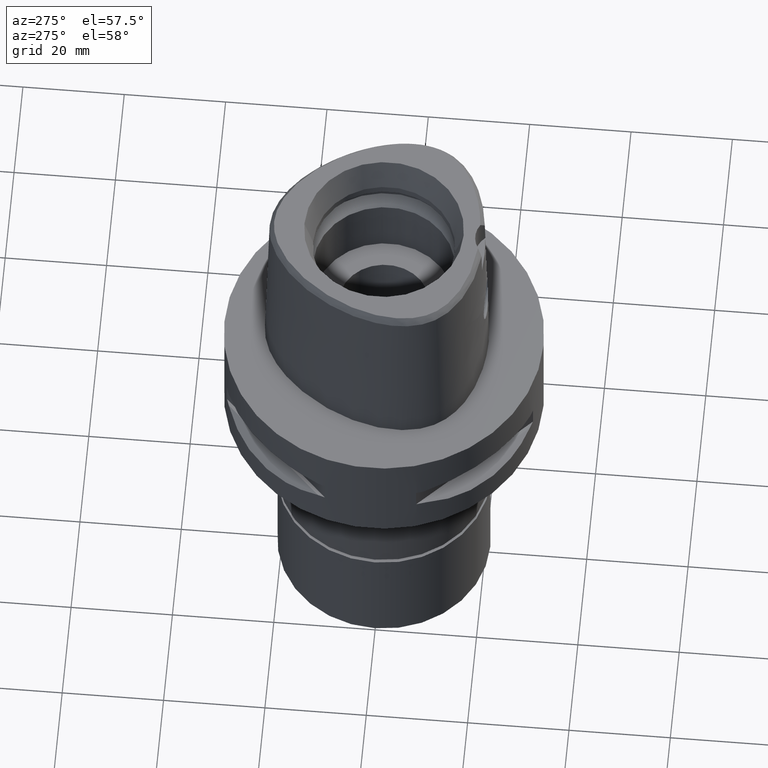
[diagram: clean part render]
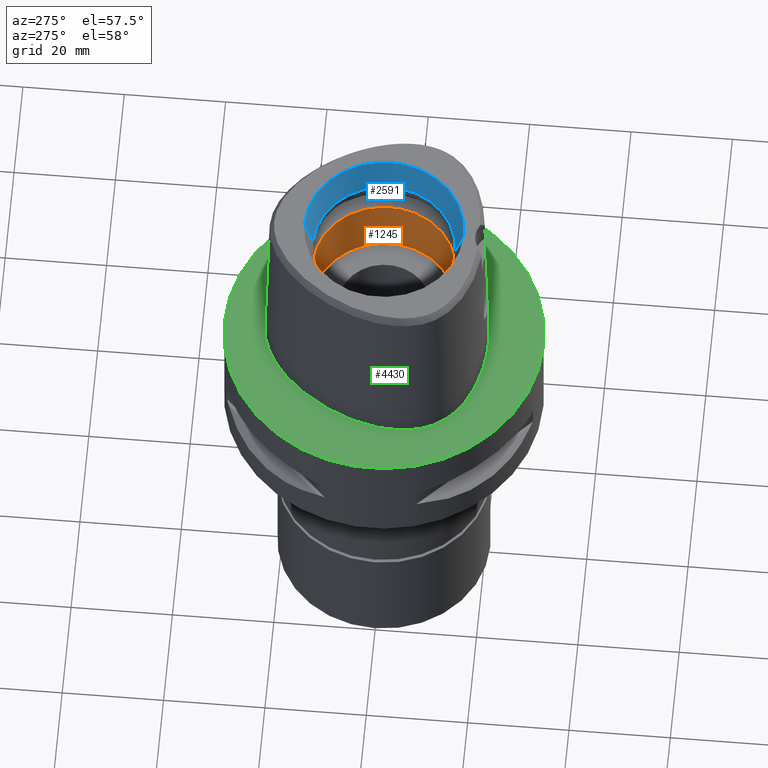
[diagram: same view with three faces highlighted in distinct colors, each labeled with its STEP entity id]
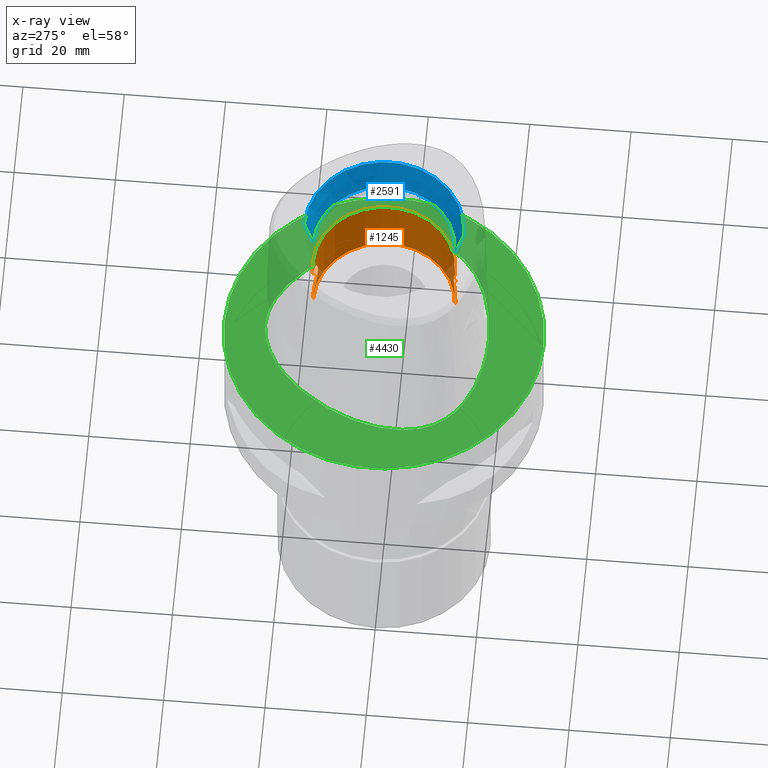
[diagram: x-ray of the same camera — body ghosted, the three highlighted faces saturated]
A machine part, auxiliary view with three faces highlighted in distinct colors.
The next image is the same camera in x-ray (body ghosted, the three faces saturated) — at least one of them is partly hidden behind the body in this view.
Their STEP definitions:

[orange] entity #1245 — the highlighted cylindrical surface (partial cylindrical patch) has radius 14 mm, axis along (0, 0, -1).
#11 = CARTESIAN_POINT ( 'NONE',  ( 0.0000000000000000000, 14.00000000000000000, 11.44999999999999929 ) ) ;
#20 = CARTESIAN_POINT ( 'NONE',  ( 2.389606631102847878, 13.79517256463715391, 18.78130546339814799 ) ) ;
#50 = VERTEX_POINT ( 'NONE', #3705 ) ;
#68 = CARTESIAN_POINT ( 'NONE',  ( 0.0000000000000000000, 14.00000000000000000, 19.55000000000000071 ) ) ;
#69 = CARTESIAN_POINT ( 'NONE',  ( 3.563299403348177741, -13.54007857837342499, 17.42809499448291177 ) ) ;
#74 = CARTESIAN_POINT ( 'NONE',  ( 2.607305802028555330, 13.75484511583591285, 12.39982832404619728 ) ) ;
#98 = CARTESIAN_POINT ( 'NONE',  ( 1.521239397964627260, 13.91705241658559977, 11.74655632043191922 ) ) ;
#117 = CARTESIAN_POINT ( 'NONE',  ( 3.870701254310896733, -13.45442875234448543, 14.30642332066276268 ) ) ;
#121 = CARTESIAN_POINT ( 'NONE',  ( 3.105382909351436016, 13.65366961293688775, 12.87581589399783510 ) ) ;
#143 = CARTESIAN_POINT ( 'NONE',  ( 2.790989827443583149, -13.71898972574921949, 18.43506864631904918 ) ) ;
#149 = CARTESIAN_POINT ( 'NONE',  ( 0.8843927856092005380, 13.97225085478111062, 11.54559706478814540 ) ) ;
#175 = CARTESIAN_POINT ( 'NONE',  ( 3.729798084138008285, 13.49406838395428210, 13.92165903206249666 ) ) ;
#237 = CIRCLE ( 'NONE', #3624, 14.00000000000000000 ) ;
#260 = CARTESIAN_POINT ( 'NONE',  ( 1.549827070804125517, -13.91385044570379392, 11.75826844476449118 ) ) ;
#289 = CARTESIAN_POINT ( 'NONE',  ( 3.012096658504149538, 13.67229405904337902, 18.20768334110830367 ) ) ;
#313 = CARTESIAN_POINT ( 'NONE',  ( 4.018418258436433632, 13.41126728698726822, 14.97902929758655333 ) ) ;
#337 = CARTESIAN_POINT ( 'NONE',  ( 3.758114823044370389, 13.48620210536324571, 17.00966254426021607 ) ) ;
#390 = CARTESIAN_POINT ( 'NONE',  ( 3.763406683060288582, 13.48472236777299749, 16.99642519946478814 ) ) ;
#438 = EDGE_CURVE ( 'NONE', #2021, #2982, #1308, .T. ) ;
#444 = CARTESIAN_POINT ( 'NONE',  ( 1.516106989697826535, -13.91761182004659858, 19.25552098761409070 ) ) ;
#466 = CARTESIAN_POINT ( 'NONE',  ( 3.504366652964252982, -13.55582170348692195, 17.53459800301160598 ) ) ;
#471 = CARTESIAN_POINT ( 'NONE',  ( 0.2468907790982800277, 14.00000000000000355, 11.44999999999999929 ) ) ;
#512 = CARTESIAN_POINT ( 'NONE',  ( 1.468464289878311124, -13.92272201800551557, 19.27446985509351407 ) ) ;
#518 = CARTESIAN_POINT ( 'NONE',  ( 3.660570587372122819, 13.51338664005266033, 13.76645812307594241 ) ) ;
#522 = EDGE_CURVE ( 'NONE', #2982, #1512, #658, .T. ) ;
#540 = CARTESIAN_POINT ( 'NONE',  ( 3.733075151569629213, -13.49315628679262424, 17.07055961913841102 ) ) ;
#550 = B_SPLINE_CURVE_WITH_KNOTS ( 'NONE', 3,
 ( #1205, #3163, #1977, #2797, #4220, #3089, #2707, #3112, #512, #4576, #3066, #444, #4198, #1654, #3475, #1252, #4552, #4176, #2032, #4596, #814, #143, #913, #1230, #2751, #466, #69, #3523, #2332, #1951, #4651, #4278, #862, #540, #2434, #2063, #2729, #2357, #3552, #1559, #3452, #2382, #3865, #837, #2003, #3498, #117, #1629, #3137, #3911, #4625, #2774, #888, #2404, #1030, #4026, #635, #4746, #4005, #589, #1372, #1704, #2917, #653, #2159, #3958, #3642, #938, #2849, #3255, #2557, #3597, #1302, #2461, #2090, #3211, #260, #2822, #3936, #4401 ),
 .UNSPECIFIED., .F., .F.,
 ( 4, 2, 2, 1, 1, 1, 1, 2, 2, 2, 2, 2, 2, 2, 2, 2, 2, 1, 1, 1, 2, 2, 2, 2, 2, 2, 2, 1, 1, 1, 1, 2, 2, 2, 2, 2, 2, 2, 2, 2, 2, 1, 1, 1, 2, 2, 4 ),
 ( 0.0000000000000000000, 0.06250000000002167710, 0.09375000000003257117, 0.1093750000000379002, 0.1171875000000404121, 0.1210937500000418138, 0.1230468750000423828, 0.1240234375000428407, 0.1250000000000432709, 0.1875000000000742462, 0.2187500000000899281, 0.2343750000000977829, 0.2421875000001016964, 0.2500000000001056377, 0.3125000000001360023, 0.3437500000001512124, 0.3593750000001583733, 0.3671875000001615375, 0.3710937500001636469, 0.3730468750001640910, 0.3740234375001638134, 0.3750000000001635359, 0.4375000000001423306, 0.4687500000001313949, 0.5000000000001203482, 0.5625000000000988098, 0.5937500000000880407, 0.6093750000000828226, 0.6171875000000803801, 0.6210937500000793809, 0.6230468750000788258, 0.6240234375000787148, 0.6250000000000786038, 0.6875000000000638378, 0.7187500000000561773, 0.7343750000000524025, 0.7421875000000506262, 0.7500000000000487388, 0.8125000000000338618, 0.8437500000000264233, 0.8593750000000226485, 0.8671875000000207612, 0.8710937500000197620, 0.8730468750000193179, 0.8740234375000190958, 0.8750000000000188738, 1.000000000000000000 ),
 .UNSPECIFIED. ) ;
#589 = CARTESIAN_POINT ( 'NONE',  ( 3.119649368171985238, -13.64852288964262073, 12.91601910559208832 ) ) ;
#635 = CARTESIAN_POINT ( 'NONE',  ( 3.388650874876416808, -13.58516680732913606, 13.27806070664919602 ) ) ;
#653 = CARTESIAN_POINT ( 'NONE',  ( 2.926720600961588925, -13.69070609537475036, 12.70020944749870040 ) ) ;
#658 = LINE ( 'NONE', #68, #1274 ) ;
#680 = CARTESIAN_POINT ( 'NONE',  ( 3.595207310900245812, 13.53244030162044709, 17.38331386070849760 ) ) ;
#737 = CARTESIAN_POINT ( 'NONE',  ( 4.049603778810921817, 13.40164524003842317, 15.36403679216037155 ) ) ;
#738 = LINE ( 'NONE', #1533, #2505 ) ;
#814 = CARTESIAN_POINT ( 'NONE',  ( 2.729728960428633222, -13.73122662573988428, 18.49212833583319693 ) ) ;
#834 = CARTESIAN_POINT ( 'NONE',  ( 0.0000000000000000000, 0.0000000000000000000, 11.00000000000000000 ) ) ;
#837 = CARTESIAN_POINT ( 'NONE',  ( 4.028788943890502239, -13.40828728567670325, 15.01097686220206207 ) ) ;
#861 = DIRECTION ( 'NONE',  ( 0.0000000000000000000, 0.0000000000000000000, 1.000000000000000000 ) ) ;
#862 = CARTESIAN_POINT ( 'NONE',  ( 3.729851510281004590, -13.49405347936513699, 17.07821471190008822 ) ) ;
#869 = CARTESIAN_POINT ( 'NONE',  ( 2.790917114516480169, 13.71900452313149721, 12.56486224800528184 ) ) ;
#888 = CARTESIAN_POINT ( 'NONE',  ( 3.760177708747098446, -13.48562548706266107, 13.99547953274038647 ) ) ;
#904 = EDGE_CURVE ( 'NONE', #50, #2851, #4349, .T. ) ;
#913 = CARTESIAN_POINT ( 'NONE',  ( 2.820543667296012469, -13.71297172628372962, 18.40672008197702425 ) ) ;
#914 = ORIENTED_EDGE ( 'NONE', *, *, #2968, .T. ) ;
#938 = CARTESIAN_POINT ( 'NONE',  ( 1.932644226224374373, -13.86536327347557496, 11.93901371261715738 ) ) ;
#1030 = CARTESIAN_POINT ( 'NONE',  ( 3.689309815405022341, -13.50543078305894973, 13.81942252216789235 ) ) ;
#1032 = CARTESIAN_POINT ( 'NONE',  ( 4.043404075888144433, 13.40361607803458455, 15.23546408259069374 ) ) ;
#1057 = CARTESIAN_POINT ( 'NONE',  ( 2.042740775498927519, 13.84941152458456770, 18.99976877421899957 ) ) ;
#1081 = CARTESIAN_POINT ( 'NONE',  ( 1.030342286390515172, 13.97143324013731558, 19.45624379582876173 ) ) ;
#1097 = AXIS2_PLACEMENT_3D ( 'NONE', #834, #2354, #1227 ) ;
#1104 = CARTESIAN_POINT ( 'NONE',  ( 1.564791766211536261, 13.91217584136656349, 19.23550372230628369 ) ) ;
#1205 = CARTESIAN_POINT ( 'NONE',  ( 0.0000000000000000000, -14.00000000000000000, 19.55000000000000071 ) ) ;
#1227 = DIRECTION ( 'NONE',  ( 0.0000000000000000000, 1.000000000000000000, 0.0000000000000000000 ) ) ;
#1230 = CARTESIAN_POINT ( 'NONE',  ( 3.105451877107200165, -13.65365393604282396, 18.12410257819103876 ) ) ;
#1233 = CARTESIAN_POINT ( 'NONE',  ( 2.729658579981687261, 13.73124066250220388, 12.50780749282102633 ) ) ;
#1245 = ADVANCED_FACE ( 'NONE', ( #4257 ), #3167, .F. ) ;
#1252 = CARTESIAN_POINT ( 'NONE',  ( 2.247093781679271540, -13.81783888559857587, 18.87207529808490492 ) ) ;
#1270 = DIRECTION ( 'NONE',  ( 0.0000000000000000000, 0.0000000000000000000, 1.000000000000000000 ) ) ;
#1271 = DIRECTION ( 'NONE',  ( 0.0000000000000000000, -1.000000000000000000, 0.0000000000000000000 ) ) ;
#1274 = VECTOR ( 'NONE', #861, 1000.000000000000000 ) ;
#1282 = CARTESIAN_POINT ( 'NONE',  ( 0.5006542133318911958, 13.99306271369527721, 11.47263633977860842 ) ) ;
#1302 = CARTESIAN_POINT ( 'NONE',  ( 1.584072628561228768, -13.90999090387762926, 11.77260603989251919 ) ) ;
#1308 = B_SPLINE_CURVE_WITH_KNOTS ( 'NONE', 3,
 ( #2780, #471, #1282, #149, #4228, #4179, #2008, #3890, #1983, #1562, #3072, #1660, #98, #1610, #3481, #2713, #4629, #3117, #74, #3095, #1233, #869, #3503, #121, #1632, #3166, #3141, #4256, #518, #2036, #3193, #3555, #175, #1686, #4679, #2070, #2279, #4052, #3692, #313, #1032, #737, #4797, #1902, #3332, #4429, #3767, #2991, #3740, #2945, #4819, #390, #2210, #337, #2234, #680, #1829, #3040, #1427, #4842, #2184, #289, #3669, #1453, #1480, #20, #1057, #2969, #4502, #4478, #1801, #2256, #4451, #1104, #3405, #1532, #1507, #1081, #4867, #3304 ),
 .UNSPECIFIED., .F., .F.,
 ( 4, 2, 2, 1, 1, 1, 1, 2, 2, 2, 2, 2, 2, 2, 2, 2, 2, 1, 1, 1, 2, 2, 2, 2, 2, 2, 2, 1, 1, 1, 1, 2, 2, 2, 2, 2, 2, 2, 2, 2, 2, 1, 1, 1, 2, 2, 4 ),
 ( 0.0000000000000000000, 0.06249999999997432609, 0.09374999999996150302, 0.1093749999999549943, 0.1171874999999517192, 0.1210937499999500955, 0.1230468749999492489, 0.1240234374999488742, 0.1249999999999484995, 0.1874999999999309719, 0.2187499999999222011, 0.2343749999999178157, 0.2421874999999155953, 0.2499999999999133471, 0.3124999999998950284, 0.3437499999998858691, 0.3593749999998815947, 0.3671874999998796518, 0.3710937499998787081, 0.3730468749998782640, 0.3740234374998780975, 0.3749999999998779310, 0.4374999999998592237, 0.4687499999998496758, 0.4999999999998401279, 0.5624999999998214761, 0.5937499999998124833, 0.6093749999998080424, 0.6171874999998058220, 0.6210937499998051559, 0.6230468749998043787, 0.6240234374998039346, 0.6249999999998034905, 0.6874999999998385736, 0.7187499999998562261, 0.7343749999998649969, 0.7421874999998693268, 0.7499999999998736566, 0.8124999999999066302, 0.8437499999999228395, 0.8593749999999309441, 0.8671874999999351630, 0.8710937499999373834, 0.8730468749999384936, 0.8740234374999388267, 0.8749999999999391598, 1.000000000000000000 ),
 .UNSPECIFIED. ) ;
#1366 = VERTEX_POINT ( 'NONE', #3914 ) ;
#1372 = CARTESIAN_POINT ( 'NONE',  ( 3.039621742609562638, -13.66626319303366088, 12.82327307657179105 ) ) ;
#1427 = CARTESIAN_POINT ( 'NONE',  ( 3.169484150999139604, 13.63719129944562702, 18.02244310124115501 ) ) ;
#1453 = CARTESIAN_POINT ( 'NONE',  ( 2.926757940684296511, 13.69069812806404229, 18.29975157032056998 ) ) ;
#1480 = CARTESIAN_POINT ( 'NONE',  ( 2.643855925210973901, 13.75050990108833204, 18.58899067244902881 ) ) ;
#1507 = CARTESIAN_POINT ( 'NONE',  ( 1.549800888837871815, 13.91385336478909451, 19.24174239961439170 ) ) ;
#1512 = VERTEX_POINT ( 'NONE', #3403 ) ;
#1532 = CARTESIAN_POINT ( 'NONE',  ( 1.551182167801624878, 13.91369912587216895, 19.24116860586652322 ) ) ;
#1533 = CARTESIAN_POINT ( 'NONE',  ( 0.0000000000000000000, -14.00000000000000000, 11.00000000000000000 ) ) ;
#1559 = CARTESIAN_POINT ( 'NONE',  ( 4.018446815311756737, -13.41125882817017079, 16.02075274226879742 ) ) ;
#1562 = CARTESIAN_POINT ( 'NONE',  ( 1.496209062229229003, 13.91976391567387594, 11.73649281778287268 ) ) ;
#1571 = CARTESIAN_POINT ( 'NONE',  ( 0.0000000000000000000, -14.00000000000000000, 11.44999999999999929 ) ) ;
#1610 = CARTESIAN_POINT ( 'NONE',  ( 1.699498323898332552, 13.89756202083898629, 11.81895490396662929 ) ) ;
#1629 = CARTESIAN_POINT ( 'NONE',  ( 3.840235474302556185, -13.46311102268622584, 14.21038986028327145 ) ) ;
#1632 = CARTESIAN_POINT ( 'NONE',  ( 3.292837237123419136, 13.60943893687718109, 13.12714965898324593 ) ) ;
#1644 = DIRECTION ( 'NONE',  ( 0.0000000000000000000, 0.0000000000000000000, 1.000000000000000000 ) ) ;
#1654 = CARTESIAN_POINT ( 'NONE',  ( 1.699547710347619756, -13.89755589228634847, 19.18102190414527897 ) ) ;
#1660 = CARTESIAN_POINT ( 'NONE',  ( 1.516049776552715667, 13.91761803145802467, 11.74445591610737694 ) ) ;
#1686 = CARTESIAN_POINT ( 'NONE',  ( 3.733021802275663603, 13.49317117652112330, 13.92931358081910354 ) ) ;
#1704 = CARTESIAN_POINT ( 'NONE',  ( 3.012054064919663432, -13.67230337968485543, 12.79226932695917718 ) ) ;
#1797 = DIRECTION ( 'NONE',  ( 0.0000000000000000000, 0.0000000000000000000, -1.000000000000000000 ) ) ;
#1801 = CARTESIAN_POINT ( 'NONE',  ( 1.658066957319048074, 13.90126643029906006, 19.19513103677467569 ) ) ;
#1826 = LINE ( 'NONE', #4117, #4682 ) ;
#1829 = CARTESIAN_POINT ( 'NONE',  ( 3.388711787095205707, 13.58515185966998118, 17.72184700206244301 ) ) ;
#1892 = ORIENTED_EDGE ( 'NONE', *, *, #3866, .F. ) ;
#1902 = CARTESIAN_POINT ( 'NONE',  ( 4.028817602476269855, 13.40827845965225684, 15.98879441403359003 ) ) ;
#1931 = EDGE_CURVE ( 'NONE', #1366, #2854, #4715, .T. ) ;
#1951 = CARTESIAN_POINT ( 'NONE',  ( 3.691546097942945526, -13.50475023722316159, 17.16601277855687258 ) ) ;
#1977 = CARTESIAN_POINT ( 'NONE',  ( 0.5006727397249739475, -13.99306219063980983, 19.52736202599870197 ) ) ;
#1983 = CARTESIAN_POINT ( 'NONE',  ( 1.468408839111399189, 13.92272784414878117, 11.72550857795075174 ) ) ;
#1999 = EDGE_LOOP ( 'NONE', ( #3414, #4226, #2252, #1892, #2757, #914, #3826, #2746 ) ) ;
#2003 = CARTESIAN_POINT ( 'NONE',  ( 3.956956940387752031, -13.42953289332189470, 14.62710953273264458 ) ) ;
#2008 = CARTESIAN_POINT ( 'NONE',  ( 1.301099768754825803, 13.93951553503071672, 11.66363957099792437 ) ) ;
#2021 = VERTEX_POINT ( 'NONE', #11 ) ;
#2032 = CARTESIAN_POINT ( 'NONE',  ( 2.607371625281170946, -13.75483250725455164, 18.60011643686653926 ) ) ;
#2036 = CARTESIAN_POINT ( 'NONE',  ( 3.691491732757653299, 13.50476529552040184, 13.83386678112831625 ) ) ;
#2063 = CARTESIAN_POINT ( 'NONE',  ( 3.735642322025394702, -13.49244213756905175, 17.06444735270616775 ) ) ;
#2070 = CARTESIAN_POINT ( 'NONE',  ( 3.735589064899134559, 13.49245700668902614, 13.93542548506620804 ) ) ;
#2090 = CARTESIAN_POINT ( 'NONE',  ( 1.556641822669901920, -13.91308938930849415, 11.76109977519696770 ) ) ;
#2119 = VERTEX_POINT ( 'NONE', #1571 ) ;
#2159 = CARTESIAN_POINT ( 'NONE',  ( 2.643834899388235460, -13.75051376142170589, 12.41099428314559816 ) ) ;
#2184 = CARTESIAN_POINT ( 'NONE',  ( 3.039665921569060014, 13.66625344735882841, 18.17667680129265761 ) ) ;
#2207 = DIRECTION ( 'NONE',  ( 0.0000000000000000000, -1.000000000000000000, 0.0000000000000000000 ) ) ;
#2210 = CARTESIAN_POINT ( 'NONE',  ( 3.760242303705966016, 13.48560737426130096, 17.00435901869071742 ) ) ;
#2234 = CARTESIAN_POINT ( 'NONE',  ( 3.689376291974156619, 13.50541240432178469, 17.18043312221960051 ) ) ;
#2252 = ORIENTED_EDGE ( 'NONE', *, *, #3680, .T. ) ;
#2256 = CARTESIAN_POINT ( 'NONE',  ( 1.623263029080947328, 13.90545543373178283, 19.21060336716553962 ) ) ;
#2257 = DIRECTION ( 'NONE',  ( 0.0000000000000000000, 0.0000000000000000000, 1.000000000000000000 ) ) ;
#2263 = CARTESIAN_POINT ( 'NONE',  ( 0.0000000000000000000, -14.00000000000000000, 24.19999999999999929 ) ) ;
#2279 = CARTESIAN_POINT ( 'NONE',  ( 3.844975096048708796, 13.46206385660456917, 14.19738878897553036 ) ) ;
#2332 = CARTESIAN_POINT ( 'NONE',  ( 3.660625729100416059, -13.51337147989354470, 17.23342549815627933 ) ) ;
#2354 = DIRECTION ( 'NONE',  ( 0.0000000000000000000, 0.0000000000000000000, -1.000000000000000000 ) ) ;
#2357 = CARTESIAN_POINT ( 'NONE',  ( 3.923096833782871773, -13.43954938019137835, 16.54019903190127749 ) ) ;
#2382 = CARTESIAN_POINT ( 'NONE',  ( 4.049612425225107337, -13.40164268354111776, 15.63569932303633614 ) ) ;
#2404 = CARTESIAN_POINT ( 'NONE',  ( 3.758050083745089420, -13.48622025070034702, 13.99017630582556748 ) ) ;
#2434 = CARTESIAN_POINT ( 'NONE',  ( 3.735210467204654439, -13.49256230698017411, 17.06547448724646188 ) ) ;
#2461 = CARTESIAN_POINT ( 'NONE',  ( 1.564817707003120173, -13.91217292110034087, 11.76450714444006884 ) ) ;
#2505 = VECTOR ( 'NONE', #2257, 1000.000000000000000 ) ;
#2557 = CARTESIAN_POINT ( 'NONE',  ( 1.658091469199600265, -13.90126353414017402, 11.80487996578112053 ) ) ;
#2572 = CARTESIAN_POINT ( 'NONE',  ( 0.0000000000000000000, 14.00000000000000000, 19.55000000000000071 ) ) ;
#2707 = CARTESIAN_POINT ( 'NONE',  ( 1.301148960222698214, -13.93951097464081990, 19.33634383392205436 ) ) ;
#2713 = CARTESIAN_POINT ( 'NONE',  ( 2.247039395003117335, 13.81784804716769521, 12.12788860422348414 ) ) ;
#2729 = CARTESIAN_POINT ( 'NONE',  ( 3.845027792340793837, -13.46204894698201393, 16.80246024978700703 ) ) ;
#2746 = ORIENTED_EDGE ( 'NONE', *, *, #438, .F. ) ;
#2751 = CARTESIAN_POINT ( 'NONE',  ( 3.292901640596177071, -13.60942328115688227, 17.87276157133955223 ) ) ;
#2757 = ORIENTED_EDGE ( 'NONE', *, *, #904, .T. ) ;
#2774 = CARTESIAN_POINT ( 'NONE',  ( 3.763342261370362873, -13.48474044375522318, 14.00341279520855053 ) ) ;
#2780 = CARTESIAN_POINT ( 'NONE',  ( 0.0000000000000000000, 14.00000000000000000, 11.44999999999999929 ) ) ;
#2797 = CARTESIAN_POINT ( 'NONE',  ( 0.8844260360689062406, -13.97224876255922688, 19.45439566898829398 ) ) ;
#2822 = CARTESIAN_POINT ( 'NONE',  ( 1.030360006107707838, -13.97143227215047645, 11.54375931209893302 ) ) ;
#2849 = CARTESIAN_POINT ( 'NONE',  ( 1.778688278332507533, -13.88610465195248267, 11.86103348881247221 ) ) ;
#2851 = VERTEX_POINT ( 'NONE', #2263 ) ;
#2854 = VERTEX_POINT ( 'NONE', #3651 ) ;
#2917 = CARTESIAN_POINT ( 'NONE',  ( 2.955071736272522287, -13.68463725736224923, 12.73019384771993323 ) ) ;
#2945 = CARTESIAN_POINT ( 'NONE',  ( 3.779015732589135812, 13.48035176796838108, 16.95672534374582341 ) ) ;
#2968 = EDGE_CURVE ( 'NONE', #2851, #1512, #237, .T. ) ;
#2969 = CARTESIAN_POINT ( 'NONE',  ( 1.932627882378292083, 13.86536533867107046, 19.06099527212709432 ) ) ;
#2982 = VERTEX_POINT ( 'NONE', #2572 ) ;
#2991 = CARTESIAN_POINT ( 'NONE',  ( 3.840294817787715420, 13.46309408569773147, 16.78943374163519664 ) ) ;
#3040 = CARTESIAN_POINT ( 'NONE',  ( 3.308942326201188777, 13.60475066437008884, 17.84025567227377351 ) ) ;
#3066 = CARTESIAN_POINT ( 'NONE',  ( 1.508171609194621787, -13.91847227101216866, 19.25871476569316698 ) ) ;
#3072 = CARTESIAN_POINT ( 'NONE',  ( 1.508114688977166384, 13.91847841755245696, 11.74126239597152477 ) ) ;
#3089 = CARTESIAN_POINT ( 'NONE',  ( 1.205105045107055073, -13.94796642979855328, 19.36712856783361758 ) ) ;
#3095 = CARTESIAN_POINT ( 'NONE',  ( 2.699030704183354779, 13.73723475712931119, 12.48016800975699958 ) ) ;
#3112 = CARTESIAN_POINT ( 'NONE',  ( 1.412784365357735661, -13.92850804260864095, 19.29586208320954199 ) ) ;
#3117 = CARTESIAN_POINT ( 'NONE',  ( 2.546370606578017615, 13.76608945474066914, 12.34970792376562976 ) ) ;
#3137 = CARTESIAN_POINT ( 'NONE',  ( 3.800144202731916998, -13.47442014203557115, 14.09877658220478835 ) ) ;
#3141 = CARTESIAN_POINT ( 'NONE',  ( 3.563241782715812711, 13.54009396633408358, 13.57179874374094375 ) ) ;
#3163 = CARTESIAN_POINT ( 'NONE',  ( 0.2468996679508234093, -14.00000000000000178, 19.55000000000000071 ) ) ;
#3166 = CARTESIAN_POINT ( 'NONE',  ( 3.504307532490120280, 13.55583717717183667, 13.46530034882406213 ) ) ;
#3167 = CYLINDRICAL_SURFACE ( 'NONE', #4809, 14.00000000000000000 ) ;
#3193 = CARTESIAN_POINT ( 'NONE',  ( 3.706200107092997076, 13.50065375222900954, 13.86674494028268967 ) ) ;
#3211 = CARTESIAN_POINT ( 'NONE',  ( 1.551208238223642732, -13.91369621655166533, 11.75884220370426547 ) ) ;
#3255 = CARTESIAN_POINT ( 'NONE',  ( 1.729225850440597956, -13.89248704480902497, 11.83735129882200354 ) ) ;
#3304 = CARTESIAN_POINT ( 'NONE',  ( 0.0000000000000000000, 14.00000000000000000, 19.55000000000000071 ) ) ;
#3332 = CARTESIAN_POINT ( 'NONE',  ( 3.957002233958759607, 13.42951950734986255, 16.37268615993876608 ) ) ;
#3403 = CARTESIAN_POINT ( 'NONE',  ( 0.0000000000000000000, 14.00000000000000000, 24.19999999999999929 ) ) ;
#3405 = CARTESIAN_POINT ( 'NONE',  ( 1.556615802413437999, 13.91309230328777069, 19.23891105790225708 ) ) ;
#3414 = ORIENTED_EDGE ( 'NONE', *, *, #4118, .F. ) ;
#3452 = CARTESIAN_POINT ( 'NONE',  ( 4.043419964705877057, -13.40361133387736281, 15.76429758812290416 ) ) ;
#3475 = CARTESIAN_POINT ( 'NONE',  ( 1.906677808970014043, -13.87043024234265154, 19.08306696159108995 ) ) ;
#3481 = CARTESIAN_POINT ( 'NONE',  ( 1.906629490168314733, 13.87043707360702527, 11.91690786887807540 ) ) ;
#3498 = CARTESIAN_POINT ( 'NONE',  ( 3.926535265121701812, -13.43841255903319443, 14.49868348156923048 ) ) ;
#3503 = CARTESIAN_POINT ( 'NONE',  ( 2.820467843549781861, 13.71298731429220474, 12.59320634541899864 ) ) ;
#3523 = CARTESIAN_POINT ( 'NONE',  ( 3.638007558826224841, -13.51964999186792049, 17.28057272761776275 ) ) ;
#3541 = CARTESIAN_POINT ( 'NONE',  ( 0.0000000000000000000, -14.00000000000000000, 19.55000000000000071 ) ) ;
#3552 = CARTESIAN_POINT ( 'NONE',  ( 3.999660291847240146, -13.41693908437879834, 16.15020631196708578 ) ) ;
#3555 = CARTESIAN_POINT ( 'NONE',  ( 3.722130122716231782, 13.49620542742822593, 13.90360731360805424 ) ) ;
#3568 = CARTESIAN_POINT ( 'NONE',  ( 0.0000000000000000000, 0.0000000000000000000, 24.19999999999999929 ) ) ;
#3597 = CARTESIAN_POINT ( 'NONE',  ( 1.623288208181616676, -13.90545250381732423, 11.78940765142347757 ) ) ;
#3624 = AXIS2_PLACEMENT_3D ( 'NONE', #3568, #1644, #1271 ) ;
#3642 = CARTESIAN_POINT ( 'NONE',  ( 2.042752386086353678, -13.84941008794788075, 12.00023825989842408 ) ) ;
#3651 = CARTESIAN_POINT ( 'NONE',  ( 0.0000000000000000000, -14.00000000000000000, 11.00000000000000000 ) ) ;
#3668 = CARTESIAN_POINT ( 'NONE',  ( 0.0000000000000000000, 0.0000000000000000000, 39.89999999999999858 ) ) ;
#3669 = CARTESIAN_POINT ( 'NONE',  ( 2.955110953085519299, 13.68462881808125076, 18.26976436016519045 ) ) ;
#3680 = EDGE_CURVE ( 'NONE', #2854, #2119, #738, .T. ) ;
#3692 = CARTESIAN_POINT ( 'NONE',  ( 3.999626256616608089, 13.41694908764756100, 14.84958637910954060 ) ) ;
#3705 = CARTESIAN_POINT ( 'NONE',  ( 0.0000000000000000000, -14.00000000000000000, 19.55000000000000071 ) ) ;
#3735 = DIRECTION ( 'NONE',  ( 0.0000000000000000000, 0.0000000000000000000, 1.000000000000000000 ) ) ;
#3740 = CARTESIAN_POINT ( 'NONE',  ( 3.800206420162465015, 13.47440254736202370, 16.90105474807736030 ) ) ;
#3767 = CARTESIAN_POINT ( 'NONE',  ( 3.870757722897661068, 13.45441251206839972, 16.69339373849961916 ) ) ;
#3826 = ORIENTED_EDGE ( 'NONE', *, *, #522, .F. ) ;
#3865 = CARTESIAN_POINT ( 'NONE',  ( 4.050720857187433133, -13.40131473323151035, 15.26492354352863856 ) ) ;
#3866 = EDGE_CURVE ( 'NONE', #50, #2119, #550, .T. ) ;
#3890 = CARTESIAN_POINT ( 'NONE',  ( 1.412730986114761444, 13.92851343253180652, 11.70411807278597216 ) ) ;
#3911 = CARTESIAN_POINT ( 'NONE',  ( 3.778952199953839575, -13.48036965269790954, 14.04310987004383193 ) ) ;
#3914 = CARTESIAN_POINT ( 'NONE',  ( 0.0000000000000000000, 14.00000000000000000, 11.00000000000000000 ) ) ;
#3936 = CARTESIAN_POINT ( 'NONE',  ( 0.4996952334098547777, -13.99999999999999822, 11.44999999999999751 ) ) ;
#3942 = VECTOR ( 'NONE', #1270, 1000.000000000000000 ) ;
#3958 = CARTESIAN_POINT ( 'NONE',  ( 2.389601139804161889, -13.79517373173556649, 12.21869163503215461 ) ) ;
#4005 = CARTESIAN_POINT ( 'NONE',  ( 3.169432933058021096, -13.63720302946530438, 12.97749272070930537 ) ) ;
#4026 = CARTESIAN_POINT ( 'NONE',  ( 3.595140524791824443, -13.53245790876659349, 13.61656152010545817 ) ) ;
#4052 = CARTESIAN_POINT ( 'NONE',  ( 3.923049266102526023, 13.43956307818028506, 14.45962663473167709 ) ) ;
#4117 = CARTESIAN_POINT ( 'NONE',  ( 0.0000000000000000000, 14.00000000000000000, 11.00000000000000000 ) ) ;
#4118 = EDGE_CURVE ( 'NONE', #1366, #2021, #1826, .T. ) ;
#4176 = CARTESIAN_POINT ( 'NONE',  ( 2.546434253638086176, -13.76607750042617440, 18.65024071868338496 ) ) ;
#4179 = CARTESIAN_POINT ( 'NONE',  ( 1.205059503980824287, 13.94797035271460039, 11.63285728838736333 ) ) ;
#4198 = CARTESIAN_POINT ( 'NONE',  ( 1.521297030422602337, -13.91704613760567888, 19.25342032100525458 ) ) ;
#4220 = CARTESIAN_POINT ( 'NONE',  ( 1.012837941046573542, -13.96357650085898960, 19.42358323790462293 ) ) ;
#4226 = ORIENTED_EDGE ( 'NONE', *, *, #1931, .T. ) ;
#4228 = CARTESIAN_POINT ( 'NONE',  ( 1.012799741880921811, 13.96357924690021335, 11.57640709001317347 ) ) ;
#4256 = CARTESIAN_POINT ( 'NONE',  ( 3.637951841126656483, 13.51966521367350182, 13.71931349661826438 ) ) ;
#4257 = FACE_OUTER_BOUND ( 'NONE', #1999, .T. ) ;
#4278 = CARTESIAN_POINT ( 'NONE',  ( 3.722183733158609176, -13.49619048867786297, 17.09626769077337372 ) ) ;
#4349 = LINE ( 'NONE', #3541, #3942 ) ;
#4401 = CARTESIAN_POINT ( 'NONE',  ( 0.0000000000000000000, -14.00000000000000000, 11.44999999999999929 ) ) ;
#4429 = CARTESIAN_POINT ( 'NONE',  ( 3.926585453459927599, 13.43839788949169467, 16.50112063934613360 ) ) ;
#4451 = CARTESIAN_POINT ( 'NONE',  ( 1.584046902627101350, 13.90999383390470712, 19.22740489364344540 ) ) ;
#4478 = CARTESIAN_POINT ( 'NONE',  ( 1.729202930449356579, 13.89248982857814418, 19.16265953657723742 ) ) ;
#4502 = CARTESIAN_POINT ( 'NONE',  ( 1.778666763400696738, 13.88610730095686741, 19.13897705540144045 ) ) ;
#4552 = CARTESIAN_POINT ( 'NONE',  ( 2.365389300666614680, -13.79832461971247071, 18.79101951244605573 ) ) ;
#4576 = CARTESIAN_POINT ( 'NONE',  ( 1.496265542582285502, -13.91975786605718390, 19.26348472902057551 ) ) ;
#4596 = CARTESIAN_POINT ( 'NONE',  ( 2.699099928433114748, -13.73722108738283865, 18.51977014935661003 ) ) ;
#4625 = CARTESIAN_POINT ( 'NONE',  ( 3.768068481588929597, -13.48341814577599074, 14.01531571767807449 ) ) ;
#4629 = CARTESIAN_POINT ( 'NONE',  ( 2.365331646616942507, 13.79833477075602666, 12.20893939161997643 ) ) ;
#4651 = CARTESIAN_POINT ( 'NONE',  ( 3.706254105923298514, -13.50063874721076473, 17.13313254940958785 ) ) ;
#4679 = CARTESIAN_POINT ( 'NONE',  ( 3.735157168666676686, 13.49257718675265139, 13.93439834918882170 ) ) ;
#4682 = VECTOR ( 'NONE', #3735, 1000.000000000000000 ) ;
#4715 = CIRCLE ( 'NONE', #1097, 14.00000000000000000 ) ;
#4746 = CARTESIAN_POINT ( 'NONE',  ( 3.308884437987278382, -13.60476447518349730, 13.15966324197672321 ) ) ;
#4797 = CARTESIAN_POINT ( 'NONE',  ( 4.050735818826368018, 13.40130989282440055, 15.73483262775862634 ) ) ;
#4809 = AXIS2_PLACEMENT_3D ( 'NONE', #3668, #1797, #2207 ) ;
#4819 = CARTESIAN_POINT ( 'NONE',  ( 3.768132641175311992, 13.48340012571506996, 16.98452144213280945 ) ) ;
#4842 = CARTESIAN_POINT ( 'NONE',  ( 3.119698007391810357, 13.64851191580836876, 18.08392236647734208 ) ) ;
#4867 = CARTESIAN_POINT ( 'NONE',  ( 0.4996870873900742804, 14.00000000000000355, 19.55000000000000071 ) ) ;

[blue] entity #2591 — the highlighted conical surface has half-angle 15 deg.
#148 = AXIS2_PLACEMENT_3D ( 'NONE', #2603, #1848, #3426 ) ;
#227 = CIRCLE ( 'NONE', #148, 15.71487483155999776 ) ;
#370 = CARTESIAN_POINT ( 'NONE',  ( 0.0000000000000000000, -14.00000000000000000, 31.60000000000000142 ) ) ;
#499 = DIRECTION ( 'NONE',  ( 0.0000000000000000000, 0.2588190451025869088, 0.9659258262890505486 ) ) ;
#613 = DIRECTION ( 'NONE',  ( 0.0000000000000000000, -1.000000000000000000, 0.0000000000000000000 ) ) ;
#748 = CIRCLE ( 'NONE', #1702, 14.00000000000000000 ) ;
#822 = VERTEX_POINT ( 'NONE', #2764 ) ;
#1011 = LINE ( 'NONE', #2417, #4121 ) ;
#1041 = FACE_OUTER_BOUND ( 'NONE', #2798, .T. ) ;
#1064 = CARTESIAN_POINT ( 'NONE',  ( 0.0000000000000000000, 15.71487483155999776, 38.00000000000000000 ) ) ;
#1225 = ORIENTED_EDGE ( 'NONE', *, *, #2316, .T. ) ;
#1410 = CARTESIAN_POINT ( 'NONE',  ( 0.0000000000000000000, 0.0000000000000000000, 34.79999999999999716 ) ) ;
#1464 = DIRECTION ( 'NONE',  ( 0.0000000000000000000, 1.000000000000000000, 0.0000000000000000000 ) ) ;
#1582 = EDGE_CURVE ( 'NONE', #822, #2918, #227, .T. ) ;
#1668 = CARTESIAN_POINT ( 'NONE',  ( 0.0000000000000000000, -14.00000000000000000, 31.60000000000000142 ) ) ;
#1702 = AXIS2_PLACEMENT_3D ( 'NONE', #3984, #1751, #613 ) ;
#1747 = CARTESIAN_POINT ( 'NONE',  ( 0.0000000000000000000, 14.00000000000000000, 31.60000000000000142 ) ) ;
#1751 = DIRECTION ( 'NONE',  ( 0.0000000000000000000, 0.0000000000000000000, 1.000000000000000000 ) ) ;
#1848 = DIRECTION ( 'NONE',  ( 0.0000000000000000000, 0.0000000000000000000, 1.000000000000000000 ) ) ;
#2316 = EDGE_CURVE ( 'NONE', #2524, #822, #4567, .T. ) ;
#2417 = CARTESIAN_POINT ( 'NONE',  ( 0.0000000000000000000, 14.00000000000000000, 31.60000000000000142 ) ) ;
#2524 = VERTEX_POINT ( 'NONE', #370 ) ;
#2591 = ADVANCED_FACE ( 'NONE', ( #1041 ), #3162, .F. ) ;
#2603 = CARTESIAN_POINT ( 'NONE',  ( 0.0000000000000000000, 0.0000000000000000000, 38.00000000000000000 ) ) ;
#2645 = ORIENTED_EDGE ( 'NONE', *, *, #3386, .F. ) ;
#2764 = CARTESIAN_POINT ( 'NONE',  ( 0.0000000000000000000, -15.71487483155999776, 38.00000000000000000 ) ) ;
#2773 = VECTOR ( 'NONE', #3538, 1000.000000000000000 ) ;
#2798 = EDGE_LOOP ( 'NONE', ( #2645, #4263, #1225, #3272 ) ) ;
#2918 = VERTEX_POINT ( 'NONE', #1064 ) ;
#3162 = CONICAL_SURFACE ( 'NONE', #3395, 14.85743741577999977, 0.2617993877991000029 ) ;
#3272 = ORIENTED_EDGE ( 'NONE', *, *, #1582, .T. ) ;
#3386 = EDGE_CURVE ( 'NONE', #3882, #2918, #1011, .T. ) ;
#3395 = AXIS2_PLACEMENT_3D ( 'NONE', #1410, #4826, #1464 ) ;
#3426 = DIRECTION ( 'NONE',  ( 0.0000000000000000000, -1.000000000000000000, 0.0000000000000000000 ) ) ;
#3476 = EDGE_CURVE ( 'NONE', #2524, #3882, #748, .T. ) ;
#3538 = DIRECTION ( 'NONE',  ( 0.0000000000000000000, -0.2588190451025869088, 0.9659258262890505486 ) ) ;
#3882 = VERTEX_POINT ( 'NONE', #1747 ) ;
#3984 = CARTESIAN_POINT ( 'NONE',  ( 0.0000000000000000000, 0.0000000000000000000, 31.60000000000000142 ) ) ;
#4121 = VECTOR ( 'NONE', #499, 1000.000000000000000 ) ;
#4263 = ORIENTED_EDGE ( 'NONE', *, *, #3476, .F. ) ;
#4567 = LINE ( 'NONE', #1668, #2773 ) ;
#4826 = DIRECTION ( 'NONE',  ( 0.0000000000000000000, 0.0000000000000000000, 1.000000000000000000 ) ) ;

[green] entity #4430 — the highlighted planar face has unit normal (0, 0, -1).
#1 = CARTESIAN_POINT ( 'NONE',  ( -22.05732873467161426, -6.847636717520081184, 3.441629198969696490E-07 ) ) ;
#24 = CARTESIAN_POINT ( 'NONE',  ( -21.55524825182212822, -8.996025388165341141, 3.441629198969696490E-07 ) ) ;
#34 = CARTESIAN_POINT ( 'NONE',  ( 20.93173252094856451, -10.60431640573058232, 5.131377999378558541E-08 ) ) ;
#222 = FACE_OUTER_BOUND ( 'NONE', #2637, .T. ) ;
#303 = CARTESIAN_POINT ( 'NONE',  ( 7.571159433700541008, 21.31457031138171487, 5.131377999378558541E-08 ) ) ;
#343 = CARTESIAN_POINT ( 'NONE',  ( -5.098437014071874884, 22.52602538260950382, 3.441629198969696490E-07 ) ) ;
#366 = EDGE_CURVE ( 'NONE', #570, #385, #2148, .T. ) ;
#385 = VERTEX_POINT ( 'NONE', #3046 ) ;
#395 = CARTESIAN_POINT ( 'NONE',  ( -7.571159429991846324, 21.31457030504720507, 3.441629198969696490E-07 ) ) ;
#419 = CARTESIAN_POINT ( 'NONE',  ( -20.34961797811084239, -11.74885741755973712, 3.441629198969696490E-07 ) ) ;
#526 = CARTESIAN_POINT ( 'NONE',  ( 0.0000000000000000000, 31.50000000000000000, 0.0000000000000000000 ) ) ;
#570 = VERTEX_POINT ( 'NONE', #2380 ) ;
#687 = CARTESIAN_POINT ( 'NONE',  ( -11.23259756431803069, -18.89324217936943739, 3.441629198969696490E-07 ) ) ;
#728 = CARTESIAN_POINT ( 'NONE',  ( 6.589893038288000081E-11, 23.47499999998000320, 1.563934167354999746E-13 ) ) ;
#741 = CARTESIAN_POINT ( 'NONE',  ( -10.74572890502576961, 19.17433593087259069, 3.441629198969696490E-07 ) ) ;
#751 = CARTESIAN_POINT ( 'NONE',  ( 14.40795638859129468, 15.64093749916877663, 5.131377999378558541E-08 ) ) ;
#766 = CARTESIAN_POINT ( 'NONE',  ( -18.56841064515890594, -14.16937987687428446, 3.441629198969696490E-07 ) ) ;
#1048 = CARTESIAN_POINT ( 'NONE',  ( 14.67337964355564139, -17.21410156137744352, 5.131377999378558541E-08 ) ) ;
#1079 = DIRECTION ( 'NONE',  ( 0.0000000000000000000, 1.000000000000000000, 0.0000000000000000000 ) ) ;
#1083 = B_SPLINE_CURVE_WITH_KNOTS ( 'NONE', 3,
 ( #1868, #3730, #3347, #1098, #1048, #1445, #4859, #2201, #3419, #34, #2624, #2272, #4089, #4045, #3684, #3028, #751, #1894, #303, #2670, #4813, #4446, #728 ),
 .UNSPECIFIED., .F., .F.,
 ( 4, 1, 1, 1, 1, 1, 1, 1, 1, 1, 1, 1, 1, 1, 1, 1, 1, 1, 1, 1, 4 ),
 ( 0.0000000000000000000, 0.08333333333346000515, 0.1666666666668000230, 0.2083333333334000115, 0.2500000000000000000, 0.2916666666666999919, 0.3125000000000000000, 0.3333333333333000081, 0.3541666666666999919, 0.3750000000000000000, 0.4166666666666999919, 0.4583333333332000326, 0.4999999999998999689, 0.5833333333332000326, 0.6666666666664999852, 0.7499999999998000488, 0.8333333333329999704, 0.8749999999997000177, 0.9166666666664000651, 0.9583333333329999704, 1.000000000000000000 ),
 .UNSPECIFIED. ) ;
#1098 = CARTESIAN_POINT ( 'NONE',  ( 11.23259756683213872, -18.89324218628489049, 5.131377999378558541E-08 ) ) ;
#1129 = AXIS2_PLACEMENT_3D ( 'NONE', #3327, #3402, #1079 ) ;
#1158 = CARTESIAN_POINT ( 'NONE',  ( -22.24453906991494279, -4.100468750050205280, 3.441629198969696490E-07 ) ) ;
#1178 = CIRCLE ( 'NONE', #3080, 31.50000000000000000 ) ;
#1445 = CARTESIAN_POINT ( 'NONE',  ( 16.95889172513903631, -15.67838867085801269, 5.131377999378558541E-08 ) ) ;
#1485 = CARTESIAN_POINT ( 'NONE',  ( -16.95889172059685279, -15.67838866508460072, 3.441629198969696490E-07 ) ) ;
#1728 = ORIENTED_EDGE ( 'NONE', *, *, #2097, .F. ) ;
#1857 = CARTESIAN_POINT ( 'NONE',  ( 6.589893038288000081E-11, 23.47499999998000320, 1.563934167354999746E-13 ) ) ;
#1868 = CARTESIAN_POINT ( 'NONE',  ( -1.332770356132000049E-11, -20.67499999999999716, 1.593170040336999923E-13 ) ) ;
#1882 = CARTESIAN_POINT ( 'NONE',  ( -20.74942740066090252, 4.657187497066225923, 3.441629198969696490E-07 ) ) ;
#1894 = CARTESIAN_POINT ( 'NONE',  ( 10.74572890976018513, 19.17433593651453450, 5.131377999378558541E-08 ) ) ;
#1979 = EDGE_CURVE ( 'NONE', #4454, #2161, #1178, .T. ) ;
#2097 = EDGE_CURVE ( 'NONE', #385, #570, #1083, .T. ) ;
#2143 = PLANE ( 'NONE',  #4590 ) ;
#2148 = B_SPLINE_CURVE_WITH_KNOTS ( 'NONE', 3,
 ( #1857, #4531, #3720, #343, #395, #741, #2949, #2611, #1882, #2314, #1158, #1, #24, #3800, #419, #4128, #766, #1485, #4080, #687, #2214, #2287, #4846 ),
 .UNSPECIFIED., .F., .F.,
 ( 4, 1, 1, 1, 1, 1, 1, 1, 1, 1, 1, 1, 1, 1, 1, 1, 1, 1, 1, 1, 4 ),
 ( 0.0000000000000000000, 0.04166666666767999960, 0.08333333333429000789, 0.1250000000009000023, 0.1666666666676000219, 0.2500000000006999956, 0.3333333333339000282, 0.4166666666672000363, 0.5000000000004000134, 0.5416666666671000607, 0.5833333333336000459, 0.6250000000002999823, 0.6458333333335000148, 0.6666666666668999985, 0.6875000000001999512, 0.7083333333333999837, 0.7500000000001000311, 0.7916666666667000474, 0.8333333333333000637, 0.9166666666666000163, 1.000000000000000000 ),
 .UNSPECIFIED. ) ;
#2161 = VERTEX_POINT ( 'NONE', #526 ) ;
#2201 = CARTESIAN_POINT ( 'NONE',  ( 19.64947365759168463, -12.82525390550150313, 5.131377999378558541E-08 ) ) ;
#2214 = CARTESIAN_POINT ( 'NONE',  ( -6.341471017683230293, -20.29812499148487603, 3.441629198969696490E-07 ) ) ;
#2272 = CARTESIAN_POINT ( 'NONE',  ( 22.05732874194668014, -6.847636718565919267, 5.131377999378558541E-08 ) ) ;
#2287 = CARTESIAN_POINT ( 'NONE',  ( -2.113823672553706956, -20.67499999139312905, 3.441629198969696490E-07 ) ) ;
#2314 = CARTESIAN_POINT ( 'NONE',  ( -21.97832646934477197, -0.2810937515053071878, 3.441629198969696490E-07 ) ) ;
#2375 = ORIENTED_EDGE ( 'NONE', *, *, #4181, .F. ) ;
#2380 = CARTESIAN_POINT ( 'NONE',  ( 6.589893038288000081E-11, 23.47499999998000320, 1.563934167354999746E-13 ) ) ;
#2611 = CARTESIAN_POINT ( 'NONE',  ( -18.06826687778352891, 10.43171874567799051, 3.441629198427595404E-07 ) ) ;
#2624 = CARTESIAN_POINT ( 'NONE',  ( 21.55524825886090667, -8.996025390258171939, 5.131377999378558541E-08 ) ) ;
#2637 = EDGE_LOOP ( 'NONE', ( #2375, #4693 ) ) ;
#2670 = CARTESIAN_POINT ( 'NONE',  ( 5.098437016805331012, 22.52602538943052934, 5.131377999378558541E-08 ) ) ;
#2807 = FACE_BOUND ( 'NONE', #4143, .T. ) ;
#2949 = CARTESIAN_POINT ( 'NONE',  ( -14.40795638296994952, 15.64093749441825310, 3.441629198969696490E-07 ) ) ;
#3028 = CARTESIAN_POINT ( 'NONE',  ( 18.06826688414961168, 10.43171874935709909, 5.131377999378558541E-08 ) ) ;
#3046 = CARTESIAN_POINT ( 'NONE',  ( -1.332770356132000049E-11, -20.67499999999999716, 1.593170040336999923E-13 ) ) ;
#3080 = AXIS2_PLACEMENT_3D ( 'NONE', #3862, #3495, #4619 ) ;
#3220 = DIRECTION ( 'NONE',  ( 0.0000000000000000000, 0.0000000000000000000, -1.000000000000000000 ) ) ;
#3327 = CARTESIAN_POINT ( 'NONE',  ( 0.0000000000000000000, 1.265978628619000106E-14, 0.0000000000000000000 ) ) ;
#3347 = CARTESIAN_POINT ( 'NONE',  ( 6.341471018983487085, -20.29812499873102993, 5.131377999378558541E-08 ) ) ;
#3402 = DIRECTION ( 'NONE',  ( 0.0000000000000000000, 0.0000000000000000000, -1.000000000000000000 ) ) ;
#3419 = CARTESIAN_POINT ( 'NONE',  ( 20.34961798445796077, -11.74885742122835985, 5.131377999378558541E-08 ) ) ;
#3495 = DIRECTION ( 'NONE',  ( 0.0000000000000000000, 0.0000000000000000000, -1.000000000000000000 ) ) ;
#3535 = CARTESIAN_POINT ( 'NONE',  ( 0.0000000000000000000, 1.224646799146999965E-14, 0.0000000000000000000 ) ) ;
#3684 = CARTESIAN_POINT ( 'NONE',  ( 20.74942740758402593, 4.657187499562145838, 5.131377999378558541E-08 ) ) ;
#3720 = CARTESIAN_POINT ( 'NONE',  ( -2.564517725188864450, 23.29328124152871382, 3.441629198969696490E-07 ) ) ;
#3730 = CARTESIAN_POINT ( 'NONE',  ( 2.113823672989987301, -20.67499999871833793, 5.131377999378558541E-08 ) ) ;
#3800 = CARTESIAN_POINT ( 'NONE',  ( -20.93173251424364523, -10.60431640274965481, 3.441629198969696490E-07 ) ) ;
#3862 = CARTESIAN_POINT ( 'NONE',  ( 0.0000000000000000000, 1.265978628619000106E-14, 0.0000000000000000000 ) ) ;
#3988 = ORIENTED_EDGE ( 'NONE', *, *, #366, .F. ) ;
#4033 = CIRCLE ( 'NONE', #1129, 31.50000000000000000 ) ;
#4045 = CARTESIAN_POINT ( 'NONE',  ( 21.97832647659328487, -0.2810937502244448272, 5.131377999378558541E-08 ) ) ;
#4080 = CARTESIAN_POINT ( 'NONE',  ( -14.67337963992691563, -17.21410155500340267, 3.441629198969696490E-07 ) ) ;
#4089 = CARTESIAN_POINT ( 'NONE',  ( 22.24453907725998292, -4.100468750007784102, 5.131377999378558541E-08 ) ) ;
#4128 = CARTESIAN_POINT ( 'NONE',  ( -19.64947365166905513, -12.82525390118378716, 3.441629198969696490E-07 ) ) ;
#4143 = EDGE_LOOP ( 'NONE', ( #3988, #1728 ) ) ;
#4181 = EDGE_CURVE ( 'NONE', #2161, #4454, #4033, .T. ) ;
#4262 = CARTESIAN_POINT ( 'NONE',  ( 0.0000000000000000000, -31.50000000000000000, 0.0000000000000000000 ) ) ;
#4316 = DIRECTION ( 'NONE',  ( 0.0000000000000000000, -1.000000000000000000, 0.0000000000000000000 ) ) ;
#4430 = ADVANCED_FACE ( 'NONE', ( #222, #2807 ), #2143, .F. ) ;
#4446 = CARTESIAN_POINT ( 'NONE',  ( 0.8548392422177445438, 23.47499999872248466, 5.131377999378558541E-08 ) ) ;
#4454 = VERTEX_POINT ( 'NONE', #4262 ) ;
#4531 = CARTESIAN_POINT ( 'NONE',  ( -0.8548392416873324962, 23.47499999139695248, 3.441629198969695961E-07 ) ) ;
#4590 = AXIS2_PLACEMENT_3D ( 'NONE', #3535, #3220, #4316 ) ;
#4619 = DIRECTION ( 'NONE',  ( 0.0000000000000000000, -1.000000000000000000, 0.0000000000000000000 ) ) ;
#4693 = ORIENTED_EDGE ( 'NONE', *, *, #1979, .F. ) ;
#4813 = CARTESIAN_POINT ( 'NONE',  ( 2.564517726693026134, 23.29328124874028205, 5.131377999378558541E-08 ) ) ;
#4846 = CARTESIAN_POINT ( 'NONE',  ( -1.332770356132000049E-11, -20.67499999999999716, 1.593170040336999923E-13 ) ) ;
#4859 = CARTESIAN_POINT ( 'NONE',  ( 18.56841065048369188, -14.16937988192095155, 5.131377999378558541E-08 ) ) ;